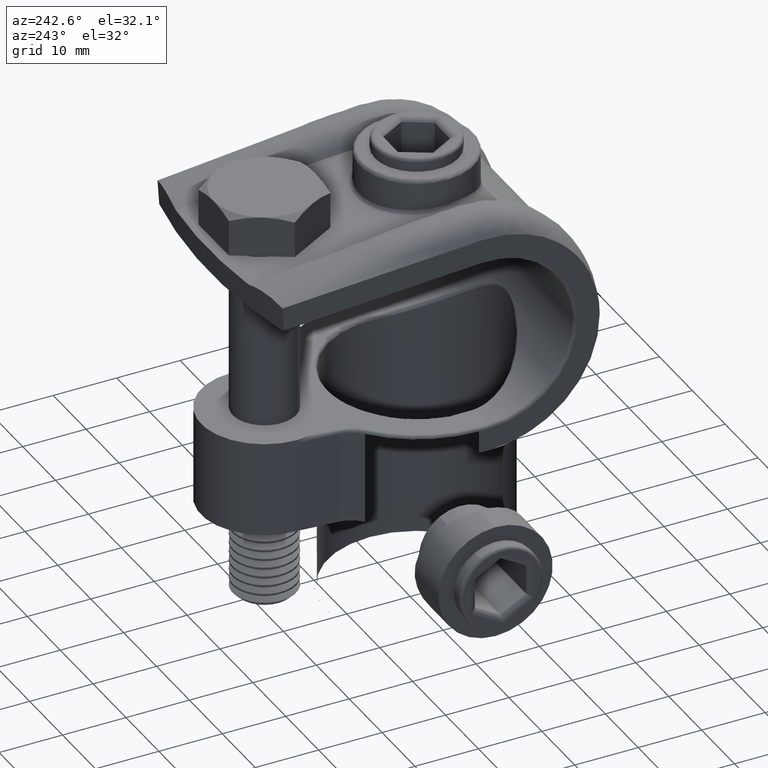
[diagram: clean part render]
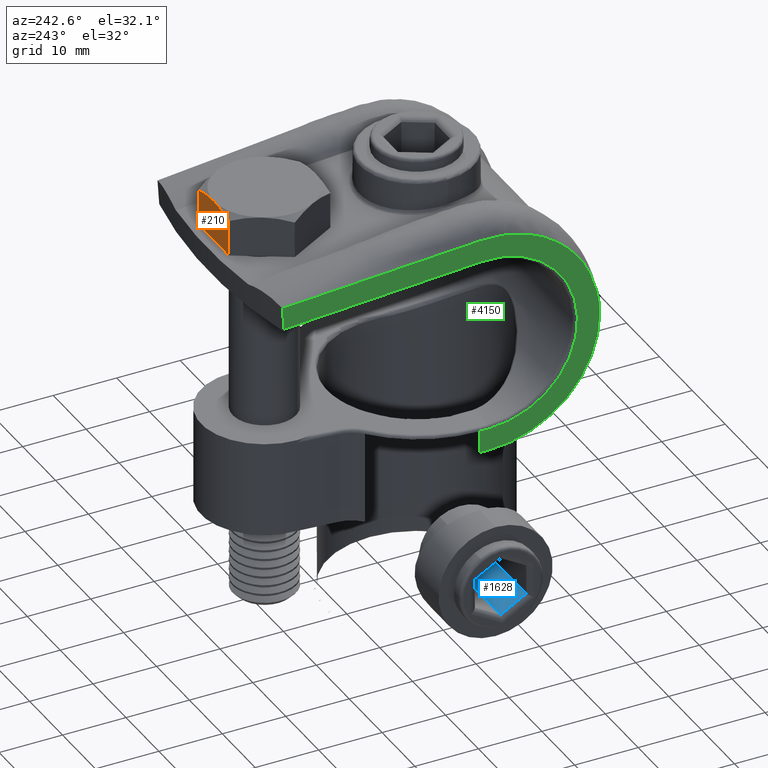
[diagram: same view with three faces highlighted in distinct colors, each labeled with its STEP entity id]
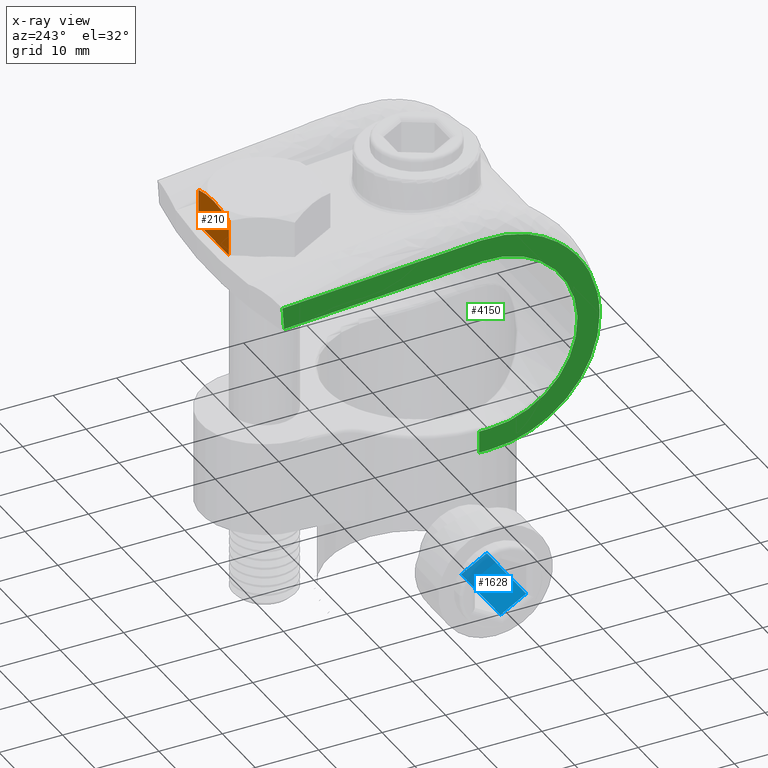
[diagram: x-ray of the same camera — body ghosted, the three highlighted faces saturated]
A machine part, auxiliary view with three faces highlighted in distinct colors.
The next image is the same camera in x-ray (body ghosted, the three faces saturated) — at least one of them is partly hidden behind the body in this view.
Their STEP definitions:

[orange] entity #210 — the highlighted planar face has unit normal (-0, -1, -0).
#14 = CARTESIAN_POINT ( 'NONE',  ( 0.08224679563971432072, 7.710515798486365924, 2.644994884459109574 ) ) ;
#34 = CARTESIAN_POINT ( 'NONE',  ( 0.1306530452038109080, 7.903938623646869388, 2.309976723937612775 ) ) ;
#54 = LINE ( 'NONE', #1120, #2583 ) ;
#210 = ADVANCED_FACE ( 'NONE', ( #284 ), #833, .F. ) ;
#284 = FACE_OUTER_BOUND ( 'NONE', #1188, .T. ) ;
#374 = DIRECTION ( 'NONE',  ( 0.000000000000000000, -0.8660254037844382635, -0.5000000000000006661 ) ) ;
#447 = CARTESIAN_POINT ( 'NONE',  ( 0.4964154566687906112, 4.996589667937374912, 7.345652830558760726 ) ) ;
#526 = CARTESIAN_POINT ( 'NONE',  ( 0.3173508448886560029, 8.480771745766405800, 1.310872448937997259 ) ) ;
#559 = CARTESIAN_POINT ( 'NONE',  ( 0.000000000000000000, 6.928203230275506108, 4.000000000000006217 ) ) ;
#833 = PLANE ( 'NONE',  #1481 ) ;
#885 = CARTESIAN_POINT ( 'NONE',  ( 6.400000000000000355, 9.237604307034018802, 0.000000000000000000 ) ) ;
#928 = CARTESIAN_POINT ( 'NONE',  ( 0.000000000000000000, 6.928203230275506108, 4.000000000000006217 ) ) ;
#1006 = CARTESIAN_POINT ( 'NONE',  ( 0.7145311798163274108, 9.237604307034018802, -2.124379920709345337E-16 ) ) ;
#1110 = DIRECTION ( 'NONE',  ( 0.000000000000000000, -0.5000000000000007772, 0.8660254037844381525 ) ) ;
#1120 = CARTESIAN_POINT ( 'NONE',  ( 6.400000000000000355, 4.618802153517004960, 8.000000000000000000 ) ) ;
#1188 = EDGE_LOOP ( 'NONE', ( #3241, #2565, #2300, #2752, #4215 ) ) ;
#1210 = VERTEX_POINT ( 'NONE', #559 ) ;
#1275 = VERTEX_POINT ( 'NONE', #2325 ) ;
#1467 = CARTESIAN_POINT ( 'NONE',  ( 0.7145311798163228589, 4.618802153517005848, 8.000000000000000000 ) ) ;
#1475 = EDGE_CURVE ( 'NONE', #2691, #1275, #54, .T. ) ;
#1481 = AXIS2_PLACEMENT_3D ( 'NONE', #885, #374, #4138 ) ;
#1596 = CARTESIAN_POINT ( 'NONE',  ( 6.400000000000000355, 9.237604307034018802, 0.000000000000000000 ) ) ;
#1896 = CARTESIAN_POINT ( 'NONE',  ( -2.954450920023000372E-15, 7.124194613927624431, 3.660532965668821248 ) ) ;
#2184 = VECTOR ( 'NONE', #3859, 1000.000000000000000 ) ;
#2300 = ORIENTED_EDGE ( 'NONE', *, *, #3040, .F. ) ;
#2325 = CARTESIAN_POINT ( 'NONE',  ( 0.7145311798163228589, 4.618802153517005848, 8.000000000000000000 ) ) ;
#2565 = ORIENTED_EDGE ( 'NONE', *, *, #1475, .F. ) ;
#2583 = VECTOR ( 'NONE', #4919, 1000.000000000000000 ) ;
#2691 = VERTEX_POINT ( 'NONE', #4567 ) ;
#2752 = ORIENTED_EDGE ( 'NONE', *, *, #5077, .T. ) ;
#2797 = LINE ( 'NONE', #1596, #5492 ) ;
#3040 = EDGE_CURVE ( 'NONE', #4129, #2691, #2797, .T. ) ;
#3217 = CARTESIAN_POINT ( 'NONE',  ( 6.400000000000000355, 9.237604307034018802, 0.000000000000000000 ) ) ;
#3241 = ORIENTED_EDGE ( 'NONE', *, *, #3569, .F. ) ;
#3301 = EDGE_CURVE ( 'NONE', #1210, #3626, #5518, .T. ) ;
#3310 = CARTESIAN_POINT ( 'NONE',  ( 0.3167204509598370299, 5.377136764700159333, 6.686525924292792133 ) ) ;
#3569 = EDGE_CURVE ( 'NONE', #1275, #1210, #5130, .T. ) ;
#3626 = VERTEX_POINT ( 'NONE', #3821 ) ;
#3821 = CARTESIAN_POINT ( 'NONE',  ( 0.7145311798163274108, 9.237604307034018802, -2.124379920709345337E-16 ) ) ;
#3859 = DIRECTION ( 'NONE',  ( -1.000000000000000000, -0.000000000000000000, -0.000000000000000000 ) ) ;
#4129 = VERTEX_POINT ( 'NONE', #3217 ) ;
#4138 = DIRECTION ( 'NONE',  ( 0.000000000000000000, 0.5000000000000006661, -0.8660254037844382635 ) ) ;
#4215 = ORIENTED_EDGE ( 'NONE', *, *, #3301, .F. ) ;
#4250 = CARTESIAN_POINT ( 'NONE',  ( 0.000000000000000000, 6.928203230275506108, 4.000000000000006217 ) ) ;
#4567 = CARTESIAN_POINT ( 'NONE',  ( 6.400000000000000355, 4.618802153517004960, 8.000000000000000000 ) ) ;
#4687 = CARTESIAN_POINT ( 'NONE',  ( 0.06809871960542812630, 6.146186931204408843, 5.354491962338127742 ) ) ;
#4769 = CARTESIAN_POINT ( 'NONE',  ( 6.400000000000000355, 9.237604307034018802, 0.000000000000000000 ) ) ;
#4919 = DIRECTION ( 'NONE',  ( -1.000000000000000000, -0.000000000000000000, -0.000000000000000000 ) ) ;
#5077 = EDGE_CURVE ( 'NONE', #4129, #3626, #5109, .T. ) ;
#5109 = LINE ( 'NONE', #4769, #2184 ) ;
#5130 = B_SPLINE_CURVE_WITH_KNOTS ( 'NONE', 3,
 ( #1467, #447, #3310, #4687, #6093, #928 ),
 .UNSPECIFIED., .F., .F.,
 ( 4, 2, 4 ),
 ( 2.380731629582122378E-07, 0.002336973833157555101, 0.004673709593152151377 ),
 .UNSPECIFIED. ) ;
#5163 = CARTESIAN_POINT ( 'NONE',  ( 0.4969600502617522730, 8.860760056385746708, 0.6527133886630306359 ) ) ;
#5492 = VECTOR ( 'NONE', #1110, 1000.000000000000114 ) ;
#5518 = B_SPLINE_CURVE_WITH_KNOTS ( 'NONE', 3,
 ( #4250, #1896, #6114, #14, #34, #526, #5163, #1006 ),
 .UNSPECIFIED., .F., .F.,
 ( 4, 2, 2, 4 ),
 ( 0.004673709593152151377, 0.005837709341827642534, 0.007001709090503133691, 0.009329708587854115137 ),
 .UNSPECIFIED. ) ;
#6093 = CARTESIAN_POINT ( 'NONE',  ( -2.873135757086586750E-15, 6.534749472788147884, 4.681481898397000130 ) ) ;
#6114 = CARTESIAN_POINT ( 'NONE',  ( 0.01688885742776758889, 7.321065037175426227, 3.319543390096036717 ) ) ;

[blue] entity #1628 — the highlighted planar face has unit normal (-0, -0.5, -0.866).
#349 = CARTESIAN_POINT ( 'NONE',  ( 2.337499999999998579, 12.49999999999999822, -4.048668762692252621 ) ) ;
#557 = ORIENTED_EDGE ( 'NONE', *, *, #5173, .T. ) ;
#717 = DIRECTION ( 'NONE',  ( -0.000000000000000000, 0.000000000000000000, -1.000000000000000000 ) ) ;
#724 = LINE ( 'NONE', #5734, #1484 ) ;
#860 = LINE ( 'NONE', #5202, #4590 ) ;
#890 = VECTOR ( 'NONE', #5781, 1000.000000000000000 ) ;
#935 = ORIENTED_EDGE ( 'NONE', *, *, #3827, .T. ) ;
#1148 = CARTESIAN_POINT ( 'NONE',  ( 2.337499999999998579, 0.000000000000000000, -4.048668762692252621 ) ) ;
#1285 = EDGE_CURVE ( 'NONE', #3022, #3593, #724, .T. ) ;
#1403 = EDGE_CURVE ( 'NONE', #3022, #2914, #2205, .T. ) ;
#1484 = VECTOR ( 'NONE', #3831, 1000.000000000000000 ) ;
#1620 = VECTOR ( 'NONE', #5379, 1000.000000000000000 ) ;
#1628 = ADVANCED_FACE ( 'NONE', ( #1914 ), #4047, .F. ) ;
#1636 = CARTESIAN_POINT ( 'NONE',  ( 2.337499999999998579, 0.5000000000000038858, -4.048668762692252621 ) ) ;
#1914 = FACE_OUTER_BOUND ( 'NONE', #4636, .T. ) ;
#2205 = LINE ( 'NONE', #1636, #890 ) ;
#2333 = CARTESIAN_POINT ( 'NONE',  ( 2.337499999999998579, 0.5000000000000036637, -4.048668762692252621 ) ) ;
#2474 = ORIENTED_EDGE ( 'NONE', *, *, #1285, .F. ) ;
#2670 = AXIS2_PLACEMENT_3D ( 'NONE', #5865, #717, #5432 ) ;
#2914 = VERTEX_POINT ( 'NONE', #2333 ) ;
#3022 = VERTEX_POINT ( 'NONE', #3435 ) ;
#3435 = CARTESIAN_POINT ( 'NONE',  ( -2.337500000000000355, 0.5000000000000036637, -4.048668762692252621 ) ) ;
#3593 = VERTEX_POINT ( 'NONE', #3744 ) ;
#3744 = CARTESIAN_POINT ( 'NONE',  ( -2.337500000000000355, 12.49999999999999822, -4.048668762692252621 ) ) ;
#3827 = EDGE_CURVE ( 'NONE', #2914, #5684, #5643, .T. ) ;
#3831 = DIRECTION ( 'NONE',  ( -0.000000000000000000, 1.000000000000000000, -0.000000000000000000 ) ) ;
#4047 = PLANE ( 'NONE',  #2670 ) ;
#4286 = ORIENTED_EDGE ( 'NONE', *, *, #1403, .T. ) ;
#4590 = VECTOR ( 'NONE', #4750, 1000.000000000000000 ) ;
#4636 = EDGE_LOOP ( 'NONE', ( #935, #557, #2474, #4286 ) ) ;
#4750 = DIRECTION ( 'NONE',  ( -1.000000000000000000, 0.000000000000000000, 0.000000000000000000 ) ) ;
#5173 = EDGE_CURVE ( 'NONE', #5684, #3593, #860, .T. ) ;
#5202 = CARTESIAN_POINT ( 'NONE',  ( -2.337500000000000355, 12.50000000000000178, -4.048668762692252621 ) ) ;
#5379 = DIRECTION ( 'NONE',  ( -0.000000000000000000, 1.000000000000000000, -0.000000000000000000 ) ) ;
#5432 = DIRECTION ( 'NONE',  ( -1.000000000000000000, 0.000000000000000000, 0.000000000000000000 ) ) ;
#5643 = LINE ( 'NONE', #1148, #1620 ) ;
#5684 = VERTEX_POINT ( 'NONE', #349 ) ;
#5734 = CARTESIAN_POINT ( 'NONE',  ( -2.337500000000000355, 0.000000000000000000, -4.048668762692252621 ) ) ;
#5781 = DIRECTION ( 'NONE',  ( 1.000000000000000000, 0.000000000000000000, 0.000000000000000000 ) ) ;
#5865 = CARTESIAN_POINT ( 'NONE',  ( 2.337499999999998579, 0.000000000000000000, -4.048668762692252621 ) ) ;

[green] entity #4150 — the highlighted planar face has unit normal (1, 0, 0).
#17 = VERTEX_POINT ( 'NONE', #3999 ) ;
#21 = VERTEX_POINT ( 'NONE', #3432 ) ;
#56 = CARTESIAN_POINT ( 'NONE',  ( -19.00000000000000000, 1.070711994221114960, 6.149651290139777515 ) ) ;
#144 = EDGE_CURVE ( 'NONE', #974, #4782, #5063, .T. ) ;
#194 = VECTOR ( 'NONE', #2624, 1000.000000000000000 ) ;
#212 = ORIENTED_EDGE ( 'NONE', *, *, #5711, .F. ) ;
#301 = VERTEX_POINT ( 'NONE', #1265 ) ;
#313 = CARTESIAN_POINT ( 'NONE',  ( -19.00000000000000000, 52.00000000000000000, 15.13025820436953417 ) ) ;
#337 = CARTESIAN_POINT ( 'NONE',  ( -19.00000000000000000, 17.50000000000000000, 2.143131898507868248E-15 ) ) ;
#395 = CARTESIAN_POINT ( 'NONE',  ( -19.00000000000000000, 18.47659063241769317, 13.96589670363754720 ) ) ;
#490 = EDGE_CURVE ( 'NONE', #4279, #1489, #1415, .T. ) ;
#737 = CARTESIAN_POINT ( 'NONE',  ( -19.00000000000004263, 14.46654583342150246, 17.75485299546611984 ) ) ;
#749 = ORIENTED_EDGE ( 'NONE', *, *, #3538, .T. ) ;
#861 = DIRECTION ( 'NONE',  ( -0.000000000000000000, -0.9975640502598245307, 0.06975647374412148605 ) ) ;
#974 = VERTEX_POINT ( 'NONE', #2280 ) ;
#990 = CARTESIAN_POINT ( 'NONE',  ( -19.00000000000001066, 6.605413245440654002, 13.69518088406940848 ) ) ;
#1000 = VECTOR ( 'NONE', #1260, 1000.000000000000000 ) ;
#1016 = VERTEX_POINT ( 'NONE', #2233 ) ;
#1037 = CARTESIAN_POINT ( 'NONE',  ( -18.99999999999999645, 3.708164086787005598, 10.77196649377486182 ) ) ;
#1137 = ORIENTED_EDGE ( 'NONE', *, *, #144, .T. ) ;
#1173 = CARTESIAN_POINT ( 'NONE',  ( -19.00000000000000000, 19.00000000000000355, -13.99999999999999822 ) ) ;
#1203 = ORIENTED_EDGE ( 'NONE', *, *, #1708, .F. ) ;
#1260 = DIRECTION ( 'NONE',  ( 0.000000000000000000, -0.9975640502598245307, 0.06975647374412156931 ) ) ;
#1265 = CARTESIAN_POINT ( 'NONE',  ( -19.00000000000000000, 17.49999999999999645, -14.00000000000000000 ) ) ;
#1308 = CARTESIAN_POINT ( 'NONE',  ( -19.00000000000000000, 17.50000000000000000, 2.143131898507868248E-15 ) ) ;
#1331 = CARTESIAN_POINT ( 'NONE',  ( -19.00000000000000000, 17.50000000000000000, -17.49999999999999645 ) ) ;
#1332 = VECTOR ( 'NONE', #3451, 1000.000000000000114 ) ;
#1354 = CARTESIAN_POINT ( 'NONE',  ( -19.00000000000000000, -0.004478335097878805710, 1.258268110824373620 ) ) ;
#1372 = CARTESIAN_POINT ( 'NONE',  ( -19.00000000000000000, 0.1349323604554498457, 2.524733585892853238 ) ) ;
#1374 = B_SPLINE_CURVE_WITH_KNOTS ( 'NONE', 3,
 ( #4500, #737, #2207, #1714, #4981 ),
 .UNSPECIFIED., .F., .F.,
 ( 4, 1, 4 ),
 ( 0.5313859951387926994, 0.7351721522233748418, 0.7437817400886279628 ),
 .UNSPECIFIED. ) ;
#1393 = CARTESIAN_POINT ( 'NONE',  ( -19.00000000000000355, 1.734723475976807094E-15, 0.000000000000000000 ) ) ;
#1401 = VECTOR ( 'NONE', #5062, 1000.000000000000000 ) ;
#1402 = VECTOR ( 'NONE', #1915, 1000.000000000000000 ) ;
#1415 = B_SPLINE_CURVE_WITH_KNOTS ( 'NONE', 3,
 ( #1037, #3376, #3314, #990 ),
 .UNSPECIFIED., .F., .F.,
 ( 4, 4 ),
 ( 0.000000000000000000, 1.000000000000000000 ),
 .UNSPECIFIED. ) ;
#1457 = ORIENTED_EDGE ( 'NONE', *, *, #5719, .F. ) ;
#1489 = VERTEX_POINT ( 'NONE', #2980 ) ;
#1531 = CARTESIAN_POINT ( 'NONE',  ( -19.00000000000000355, 0.4102125509156531180, 3.766850799423731022 ) ) ;
#1561 = CARTESIAN_POINT ( 'NONE',  ( -18.99999999999999645, 3.708164086787005598, 10.77196649377486182 ) ) ;
#1651 = CARTESIAN_POINT ( 'NONE',  ( -18.99999999999999645, 50.77219311066568252, 26.24297570471584962 ) ) ;
#1708 = EDGE_CURVE ( 'NONE', #2319, #3632, #4611, .T. ) ;
#1713 = EDGE_CURVE ( 'NONE', #1820, #1489, #1374, .T. ) ;
#1714 = CARTESIAN_POINT ( 'NONE',  ( -19.00000000000001066, 6.742794983109535067, 13.80485463679966962 ) ) ;
#1724 = CARTESIAN_POINT ( 'NONE',  ( -18.99999999999999645, 2.581419194420361052, 9.231294237204885178 ) ) ;
#1808 = CARTESIAN_POINT ( 'NONE',  ( -19.00000000000000000, 18.47659063241770383, 13.96589670363754543 ) ) ;
#1820 = VERTEX_POINT ( 'NONE', #5493 ) ;
#1821 = DIRECTION ( 'NONE',  ( 0.000000000000000000, 0.000000000000000000, -1.000000000000000000 ) ) ;
#1915 = DIRECTION ( 'NONE',  ( -0.000000000000000000, 1.000000000000000000, 1.156482317317867781E-15 ) ) ;
#2006 = ORIENTED_EDGE ( 'NONE', *, *, #2698, .F. ) ;
#2067 = EDGE_CURVE ( 'NONE', #4279, #17, #4258, .T. ) ;
#2118 = LINE ( 'NONE', #1331, #1401 ) ;
#2207 = CARTESIAN_POINT ( 'NONE',  ( -19.00000000000002487, 10.16916739162333094, 16.45714802615601258 ) ) ;
#2218 = CARTESIAN_POINT ( 'NONE',  ( -18.99999999999999645, 3.374786651641948243, 10.34644811949407206 ) ) ;
#2233 = CARTESIAN_POINT ( 'NONE',  ( -19.00000000000000355, 1.734723475976807094E-15, 0.000000000000000000 ) ) ;
#2280 = CARTESIAN_POINT ( 'NONE',  ( -18.99999999999999645, 49.76072424137592520, 11.77829697594839153 ) ) ;
#2319 = VERTEX_POINT ( 'NONE', #4942 ) ;
#2335 = CARTESIAN_POINT ( 'NONE',  ( -19.00000000000000355, 0.4102125509156531180, 3.766850799423731022 ) ) ;
#2338 = ORIENTED_EDGE ( 'NONE', *, *, #2067, .F. ) ;
#2624 = DIRECTION ( 'NONE',  ( -0.000000000000000000, -0.000000000000000000, 1.000000000000000000 ) ) ;
#2698 = EDGE_CURVE ( 'NONE', #3357, #2319, #2118, .T. ) ;
#2860 = EDGE_CURVE ( 'NONE', #3455, #1016, #3156, .T. ) ;
#2980 = CARTESIAN_POINT ( 'NONE',  ( -19.00000000000001066, 6.605413245440654002, 13.69518088406940848 ) ) ;
#2982 = AXIS2_PLACEMENT_3D ( 'NONE', #4607, #3660, #5034 ) ;
#3062 = AXIS2_PLACEMENT_3D ( 'NONE', #337, #3174, #4588 ) ;
#3081 = EDGE_CURVE ( 'NONE', #21, #974, #4387, .T. ) ;
#3093 = ORIENTED_EDGE ( 'NONE', *, *, #2860, .F. ) ;
#3116 = CIRCLE ( 'NONE', #3062, 17.50000000000000000 ) ;
#3156 = B_SPLINE_CURVE_WITH_KNOTS ( 'NONE', 3,
 ( #3251, #1372, #1354, #1393 ),
 .UNSPECIFIED., .F., .F.,
 ( 4, 4 ),
 ( 0.000000000000000000, 1.000000000000000000 ),
 .UNSPECIFIED. ) ;
#3164 = ORIENTED_EDGE ( 'NONE', *, *, #5897, .T. ) ;
#3174 = DIRECTION ( 'NONE',  ( 1.000000000000000000, 0.000000000000000000, 0.000000000000000000 ) ) ;
#3251 = CARTESIAN_POINT ( 'NONE',  ( -19.00000000000000355, 0.4102125509156531180, 3.766850799423731022 ) ) ;
#3314 = CARTESIAN_POINT ( 'NONE',  ( -19.00000000000000000, 5.525036002189234630, 12.83258948701375246 ) ) ;
#3348 = CARTESIAN_POINT ( 'NONE',  ( -19.00000000000000000, 1.585562590162386432, 7.278782997751832795 ) ) ;
#3357 = VERTEX_POINT ( 'NONE', #3743 ) ;
#3376 = CARTESIAN_POINT ( 'NONE',  ( -19.00000000000000000, 4.559286282638766785, 11.85818469024949984 ) ) ;
#3432 = CARTESIAN_POINT ( 'NONE',  ( -19.00000000000000000, 50.00487189948035649, 15.26977115185777656 ) ) ;
#3451 = DIRECTION ( 'NONE',  ( -0.000000000000000000, -0.06975647374412148605, -0.9975640502598245307 ) ) ;
#3455 = VERTEX_POINT ( 'NONE', #2335 ) ;
#3497 = LINE ( 'NONE', #3727, #1402 ) ;
#3538 = EDGE_CURVE ( 'NONE', #301, #3632, #3497, .T. ) ;
#3565 = CARTESIAN_POINT ( 'NONE',  ( -18.99999999999999645, 1.927641286283348299, 8.028884924603847395 ) ) ;
#3632 = VERTEX_POINT ( 'NONE', #1173 ) ;
#3660 = DIRECTION ( 'NONE',  ( 1.000000000000000000, 0.000000000000000000, 0.000000000000000000 ) ) ;
#3670 = B_SPLINE_CURVE_WITH_KNOTS ( 'NONE', 3,
 ( #1531, #5242, #56, #3348 ),
 .UNSPECIFIED., .F., .F.,
 ( 4, 4 ),
 ( 0.000000000000000000, 1.000000000000000000 ),
 .UNSPECIFIED. ) ;
#3690 = ORIENTED_EDGE ( 'NONE', *, *, #490, .T. ) ;
#3727 = CARTESIAN_POINT ( 'NONE',  ( -19.00000000000000000, 17.50000000000001776, -14.00000000000000000 ) ) ;
#3743 = CARTESIAN_POINT ( 'NONE',  ( -19.00000000000000000, 17.50000000000000000, -17.49999999999999645 ) ) ;
#3784 = FACE_OUTER_BOUND ( 'NONE', #5878, .T. ) ;
#3999 = CARTESIAN_POINT ( 'NONE',  ( -19.00000000000000000, 1.585562590162386432, 7.278782997751832795 ) ) ;
#4058 = CARTESIAN_POINT ( 'NONE',  ( -18.99999999999999645, 3.708164086787005598, 10.77196649377486182 ) ) ;
#4121 = PLANE ( 'NONE',  #2982 ) ;
#4131 = DIRECTION ( 'NONE',  ( 1.000000000000000000, 0.000000000000000000, 0.000000000000000000 ) ) ;
#4150 = ADVANCED_FACE ( 'NONE', ( #3784 ), #4121, .F. ) ;
#4182 = ORIENTED_EDGE ( 'NONE', *, *, #1713, .F. ) ;
#4258 = B_SPLINE_CURVE_WITH_KNOTS ( 'NONE', 3,
 ( #4058, #2218, #1724, #3565, #4989 ),
 .UNSPECIFIED., .F., .F.,
 ( 4, 1, 4 ),
 ( 0.000000000000000000, 0.3954531390281606495, 1.000000000000000000 ),
 .UNSPECIFIED. ) ;
#4279 = VERTEX_POINT ( 'NONE', #1561 ) ;
#4387 = LINE ( 'NONE', #1651, #1332 ) ;
#4500 = CARTESIAN_POINT ( 'NONE',  ( -19.00000000000000711, 18.72073553933190837, 17.45737107192868010 ) ) ;
#4588 = DIRECTION ( 'NONE',  ( 0.000000000000000000, 0.000000000000000000, -1.000000000000000000 ) ) ;
#4591 = ORIENTED_EDGE ( 'NONE', *, *, #3081, .T. ) ;
#4607 = CARTESIAN_POINT ( 'NONE',  ( -19.00000000000000000, 17.50000000000000000, 2.143131898507868248E-15 ) ) ;
#4611 = LINE ( 'NONE', #5410, #194 ) ;
#4782 = VERTEX_POINT ( 'NONE', #395 ) ;
#4822 = AXIS2_PLACEMENT_3D ( 'NONE', #1308, #4131, #1821 ) ;
#4942 = CARTESIAN_POINT ( 'NONE',  ( -19.00000000000000000, 18.99999999999974420, -17.50000000000001776 ) ) ;
#4981 = CARTESIAN_POINT ( 'NONE',  ( -19.00000000000001066, 6.605413245440654002, 13.69518088406940848 ) ) ;
#4989 = CARTESIAN_POINT ( 'NONE',  ( -19.00000000000000000, 1.585562590162386432, 7.278782997751832795 ) ) ;
#5034 = DIRECTION ( 'NONE',  ( 0.000000000000000000, 0.000000000000000000, -1.000000000000000000 ) ) ;
#5062 = DIRECTION ( 'NONE',  ( 0.000000000000000000, 1.000000000000000000, 0.000000000000000000 ) ) ;
#5063 = LINE ( 'NONE', #1808, #5147 ) ;
#5088 = ORIENTED_EDGE ( 'NONE', *, *, #5194, .T. ) ;
#5147 = VECTOR ( 'NONE', #861, 1000.000000000000114 ) ;
#5194 = EDGE_CURVE ( 'NONE', #3455, #17, #3670, .T. ) ;
#5242 = CARTESIAN_POINT ( 'NONE',  ( -19.00000000000000000, 0.6789286478054341600, 4.979007224030184808 ) ) ;
#5410 = CARTESIAN_POINT ( 'NONE',  ( -19.00000000000000000, 19.00000000000000355, -13.49999999999999822 ) ) ;
#5464 = LINE ( 'NONE', #313, #1000 ) ;
#5493 = CARTESIAN_POINT ( 'NONE',  ( -19.00000000000000711, 18.72073553933190837, 17.45737107192868010 ) ) ;
#5546 = CIRCLE ( 'NONE', #4822, 14.00000000000000178 ) ;
#5711 = EDGE_CURVE ( 'NONE', #1016, #3357, #3116, .T. ) ;
#5719 = EDGE_CURVE ( 'NONE', #21, #1820, #5464, .T. ) ;
#5878 = EDGE_LOOP ( 'NONE', ( #3164, #749, #1203, #2006, #212, #3093, #5088, #2338, #3690, #4182, #1457, #4591, #1137 ) ) ;
#5897 = EDGE_CURVE ( 'NONE', #4782, #301, #5546, .T. ) ;